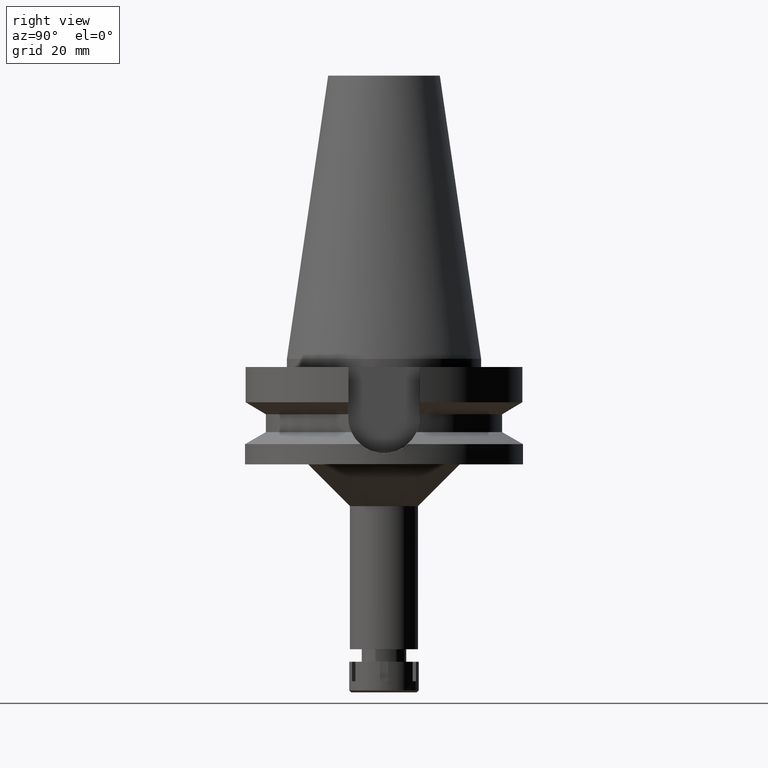
[diagram: clean part render]
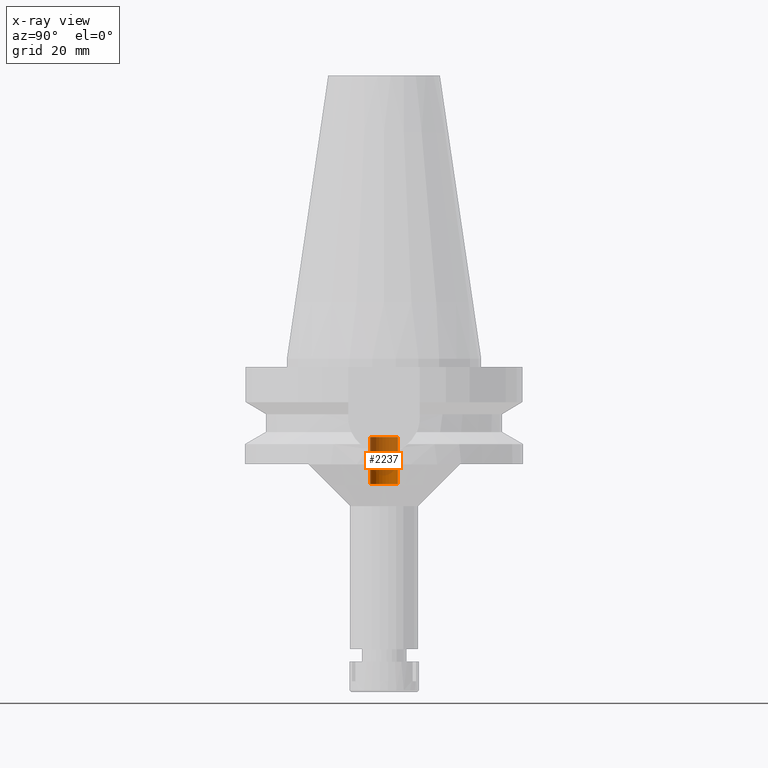
[diagram: x-ray — body ghosted, one internal face saturated and labeled with its STEP entity id]
A machine part, right view, then the same camera in x-ray: the body is ghosted and one INTERNAL B-rep face — a face not visible from any outside direction — is saturated and labeled: STEP entity #2237.
In plain terms, the highlighted cylindrical surface (edge-blend (fillet) strip) has radius 5 mm, axis along (0, 0, -1).
Its self-contained STEP definition (entity closure, byte-faithful):
#58 = CYLINDRICAL_SURFACE ( 'NONE', #1837, 5.000000000000000000 ) ;
#154 = VERTEX_POINT ( 'NONE', #2324 ) ;
#220 = CARTESIAN_POINT ( 'NONE',  ( 0.0000000000000000000, 5.000000000000000000, -28.19999999999999929 ) ) ;
#227 = AXIS2_PLACEMENT_3D ( 'NONE', #1106, #1396, #2002 ) ;
#499 = EDGE_CURVE ( 'NONE', #2969, #154, #3692, .T. ) ;
#759 = EDGE_CURVE ( 'NONE', #880, #1753, #1075, .T. ) ;
#772 = DIRECTION ( 'NONE',  ( 0.0000000000000000000, 0.0000000000000000000, -1.000000000000000000 ) ) ;
#804 = EDGE_CURVE ( 'NONE', #2969, #880, #3381, .T. ) ;
#880 = VERTEX_POINT ( 'NONE', #3100 ) ;
#1075 = LINE ( 'NONE', #2752, #1455 ) ;
#1106 = CARTESIAN_POINT ( 'NONE',  ( 0.0000000000000000000, 2.603476630306999805E-14, -28.19999999999999929 ) ) ;
#1283 = DIRECTION ( 'NONE',  ( 0.0000000000000000000, 0.0000000000000000000, -1.000000000000000000 ) ) ;
#1348 = ORIENTED_EDGE ( 'NONE', *, *, #804, .T. ) ;
#1360 = CARTESIAN_POINT ( 'NONE',  ( 0.0000000000000000000, -5.000000000000000000, -45.19999999999999574 ) ) ;
#1396 = DIRECTION ( 'NONE',  ( 0.0000000000000000000, 0.0000000000000000000, 1.000000000000000000 ) ) ;
#1446 = EDGE_CURVE ( 'NONE', #1753, #154, #3143, .T. ) ;
#1455 = VECTOR ( 'NONE', #3332, 1000.000000000000000 ) ;
#1749 = EDGE_LOOP ( 'NONE', ( #2236, #2769, #1348, #2805 ) ) ;
#1753 = VERTEX_POINT ( 'NONE', #220 ) ;
#1758 = AXIS2_PLACEMENT_3D ( 'NONE', #3046, #772, #3079 ) ;
#1837 = AXIS2_PLACEMENT_3D ( 'NONE', #3266, #1283, #3303 ) ;
#2002 = DIRECTION ( 'NONE',  ( 0.0000000000000000000, 1.000000000000000000, 0.0000000000000000000 ) ) ;
#2116 = FACE_OUTER_BOUND ( 'NONE', #1749, .T. ) ;
#2236 = ORIENTED_EDGE ( 'NONE', *, *, #1446, .T. ) ;
#2237 = ADVANCED_FACE ( 'NONE', ( #2116 ), #58, .F. ) ;
#2324 = CARTESIAN_POINT ( 'NONE',  ( 0.0000000000000000000, -5.000000000000000000, -28.19999999999999929 ) ) ;
#2607 = DIRECTION ( 'NONE',  ( 0.0000000000000000000, 0.0000000000000000000, 1.000000000000000000 ) ) ;
#2752 = CARTESIAN_POINT ( 'NONE',  ( 0.0000000000000000000, 5.000000000000000000, -45.19999999999999574 ) ) ;
#2769 = ORIENTED_EDGE ( 'NONE', *, *, #499, .F. ) ;
#2805 = ORIENTED_EDGE ( 'NONE', *, *, #759, .T. ) ;
#2893 = CARTESIAN_POINT ( 'NONE',  ( 0.0000000000000000000, -5.000000000000000000, -45.19999999999999574 ) ) ;
#2969 = VERTEX_POINT ( 'NONE', #1360 ) ;
#3046 = CARTESIAN_POINT ( 'NONE',  ( 0.0000000000000000000, 2.603476630306999805E-14, -45.19999999999999574 ) ) ;
#3079 = DIRECTION ( 'NONE',  ( 0.0000000000000000000, -1.000000000000000000, 0.0000000000000000000 ) ) ;
#3100 = CARTESIAN_POINT ( 'NONE',  ( 0.0000000000000000000, 5.000000000000000000, -45.19999999999999574 ) ) ;
#3143 = CIRCLE ( 'NONE', #227, 5.000000000000000000 ) ;
#3266 = CARTESIAN_POINT ( 'NONE',  ( 0.0000000000000000000, 2.603476630306999805E-14, 112.5899999999999892 ) ) ;
#3303 = DIRECTION ( 'NONE',  ( 0.0000000000000000000, -1.000000000000000000, 0.0000000000000000000 ) ) ;
#3332 = DIRECTION ( 'NONE',  ( 0.0000000000000000000, 0.0000000000000000000, 1.000000000000000000 ) ) ;
#3381 = CIRCLE ( 'NONE', #1758, 5.000000000000000000 ) ;
#3560 = VECTOR ( 'NONE', #2607, 1000.000000000000000 ) ;
#3692 = LINE ( 'NONE', #2893, #3560 ) ;